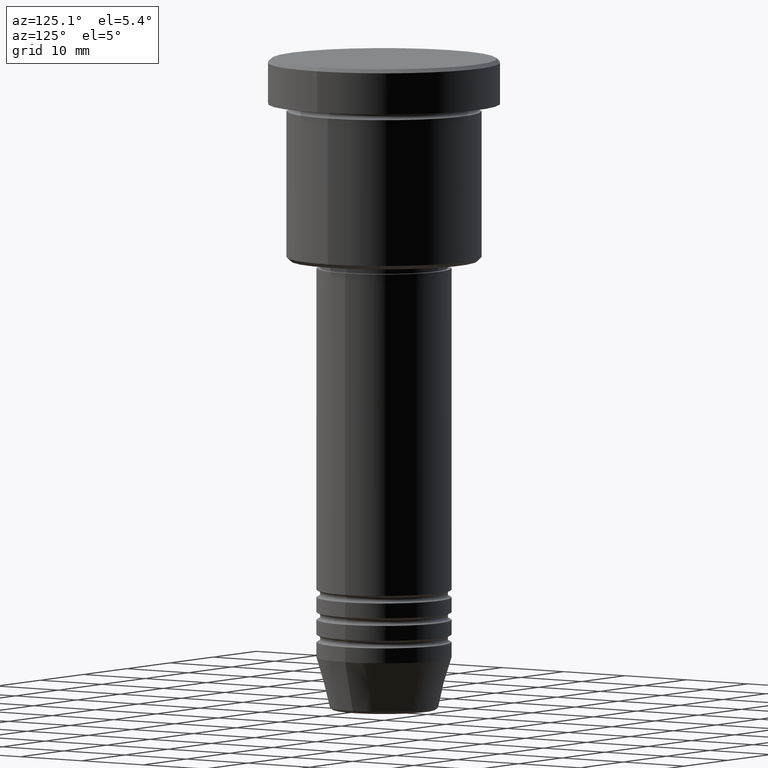
[diagram: clean part render]
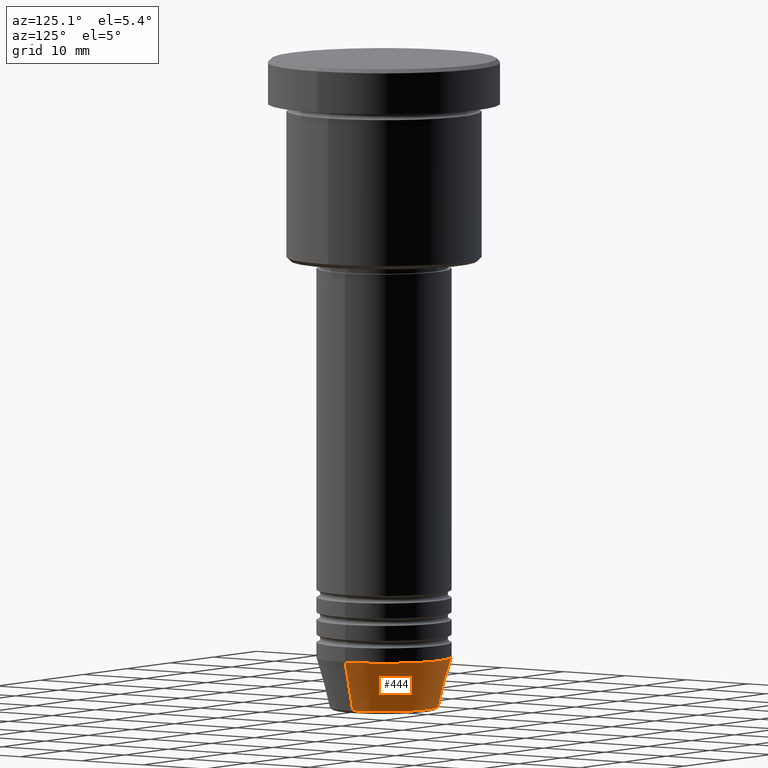
[diagram: same view with one face highlighted and labeled with its STEP entity id]
A machine part, auxiliary view. The second image highlights one B-rep face of the part: STEP entity #444.
In plain terms, the highlighted conical surface has half-angle 15 deg.
Its self-contained STEP definition (entity closure, byte-faithful):
#11 = AXIS2_PLACEMENT_3D ( 'NONE', #235, #597, #41 ) ;
#41 = DIRECTION ( 'NONE',  ( 1.000000000000000000, 0.000000000000000000, 0.000000000000000000 ) ) ;
#51 = ORIENTED_EDGE ( 'NONE', *, *, #277, .F. ) ;
#53 = EDGE_CURVE ( 'NONE', #1031, #587, #88, .T. ) ;
#54 = CARTESIAN_POINT ( 'NONE',  ( 9.000000000000000000, 0.000000000000000000, -79.99999999999998579 ) ) ;
#88 = CIRCLE ( 'NONE', #863, 9.000000000000000000 ) ;
#126 = CIRCLE ( 'NONE', #11, 7.223655072137188604 ) ;
#128 = CARTESIAN_POINT ( 'NONE',  ( -9.000000000000000000, 1.102182119232617714E-15, -79.99999999999998579 ) ) ;
#143 = ORIENTED_EDGE ( 'NONE', *, *, #1094, .T. ) ;
#235 = CARTESIAN_POINT ( 'NONE',  ( 0.000000000000000000, 0.000000000000000000, -86.62940952255125637 ) ) ;
#243 = DIRECTION ( 'NONE',  ( -0.000000000000000000, -0.000000000000000000, 1.000000000000000000 ) ) ;
#250 = ORIENTED_EDGE ( 'NONE', *, *, #53, .F. ) ;
#251 = LINE ( 'NONE', #515, #748 ) ;
#277 = EDGE_CURVE ( 'NONE', #404, #1031, #251, .T. ) ;
#368 = CONICAL_SURFACE ( 'NONE', #671, 9.000000000000000000, 0.2617993877991500740 ) ;
#395 = DIRECTION ( 'NONE',  ( -0.2588190451025213501, 3.169619151431772337E-17, 0.9659258262890680902 ) ) ;
#404 = VERTEX_POINT ( 'NONE', #1070 ) ;
#444 = ADVANCED_FACE ( 'NONE', ( #1125 ), #368, .T. ) ;
#489 = VERTEX_POINT ( 'NONE', #801 ) ;
#515 = CARTESIAN_POINT ( 'NONE',  ( 9.000000000000000000, 0.000000000000000000, -79.99999999999998579 ) ) ;
#533 = CARTESIAN_POINT ( 'NONE',  ( 0.000000000000000000, 0.000000000000000000, -79.99999999999998579 ) ) ;
#537 = EDGE_LOOP ( 'NONE', ( #143, #797, #250, #51 ) ) ;
#587 = VERTEX_POINT ( 'NONE', #1075 ) ;
#597 = DIRECTION ( 'NONE',  ( -0.000000000000000000, -0.000000000000000000, 1.000000000000000000 ) ) ;
#627 = DIRECTION ( 'NONE',  ( 1.000000000000000000, 0.000000000000000000, 0.000000000000000000 ) ) ;
#657 = LINE ( 'NONE', #128, #1061 ) ;
#671 = AXIS2_PLACEMENT_3D ( 'NONE', #691, #243, #627 ) ;
#691 = CARTESIAN_POINT ( 'NONE',  ( 0.000000000000000000, 0.000000000000000000, -79.99999999999998579 ) ) ;
#748 = VECTOR ( 'NONE', #887, 1000.000000000000000 ) ;
#792 = DIRECTION ( 'NONE',  ( 1.000000000000000000, 0.000000000000000000, 0.000000000000000000 ) ) ;
#797 = ORIENTED_EDGE ( 'NONE', *, *, #846, .T. ) ;
#801 = CARTESIAN_POINT ( 'NONE',  ( -7.223655072137189492, 9.934123627281765110E-16, -86.62940952255125637 ) ) ;
#846 = EDGE_CURVE ( 'NONE', #489, #587, #657, .T. ) ;
#863 = AXIS2_PLACEMENT_3D ( 'NONE', #533, #1164, #792 ) ;
#887 = DIRECTION ( 'NONE',  ( 0.2588190451025213501, 0.000000000000000000, 0.9659258262890680902 ) ) ;
#1031 = VERTEX_POINT ( 'NONE', #54 ) ;
#1061 = VECTOR ( 'NONE', #395, 1000.000000000000000 ) ;
#1070 = CARTESIAN_POINT ( 'NONE',  ( 7.223655072137188604, 0.000000000000000000, -86.62940952255125637 ) ) ;
#1075 = CARTESIAN_POINT ( 'NONE',  ( -9.000000000000000000, 1.102182119232617714E-15, -79.99999999999998579 ) ) ;
#1094 = EDGE_CURVE ( 'NONE', #404, #489, #126, .T. ) ;
#1125 = FACE_OUTER_BOUND ( 'NONE', #537, .T. ) ;
#1164 = DIRECTION ( 'NONE',  ( -0.000000000000000000, -0.000000000000000000, 1.000000000000000000 ) ) ;